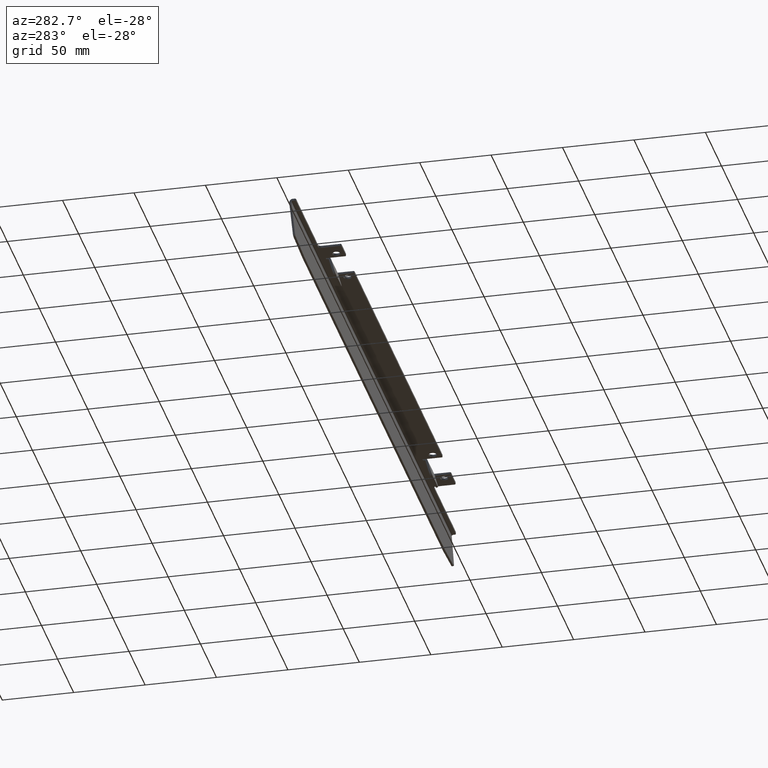
[diagram: clean part render]
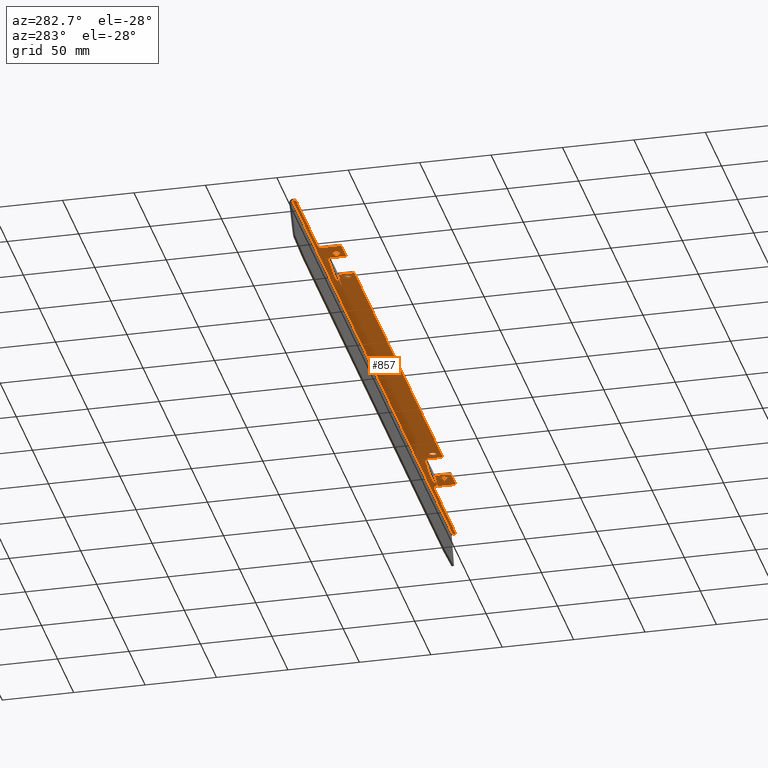
[diagram: same view with one face highlighted and labeled with its STEP entity id]
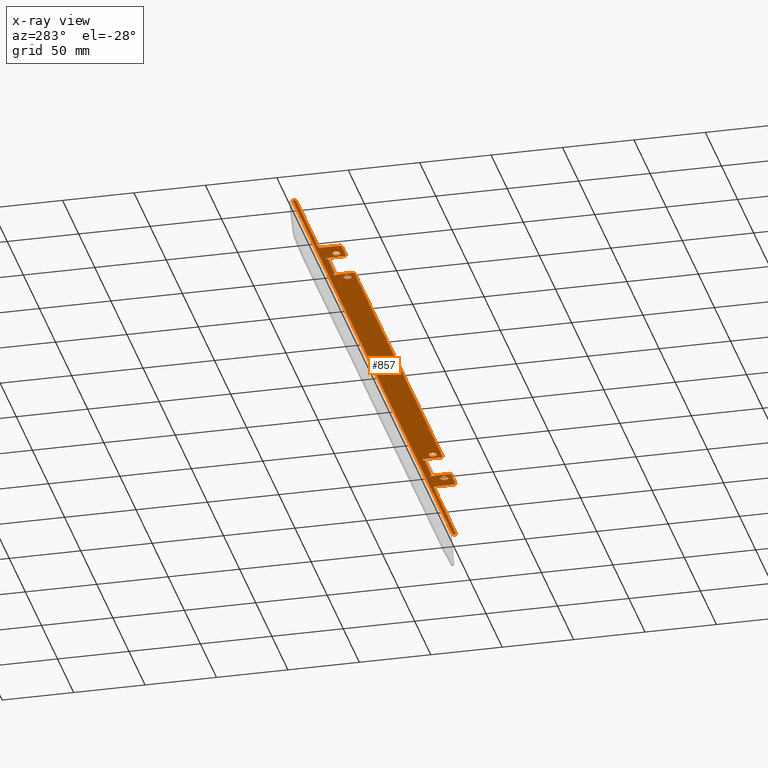
[diagram: x-ray of the same camera — body ghosted, the highlighted face saturated]
A machine part, auxiliary view. The second image highlights one B-rep face of the part: STEP entity #857.
The next image is the same camera in x-ray: the body ghosted, the highlighted face saturated — about 0% of this face is hidden behind the body in this view.
In plain terms, the highlighted planar face has unit normal (0, -0, 1).
Its self-contained STEP definition (entity closure, byte-faithful):
#1 = EDGE_CURVE ( 'NONE', #805, #1287, #2241, .T. ) ;
#18 = EDGE_CURVE ( 'NONE', #1100, #1870, #301, .T. ) ;
#23 = AXIS2_PLACEMENT_3D ( 'NONE', #202, #2084, #1515 ) ;
#25 = ORIENTED_EDGE ( 'NONE', *, *, #263, .F. ) ;
#26 = CARTESIAN_POINT ( 'NONE',  ( 163.5000000000000000, -5.328040652821459700, -1.500000000000000000 ) ) ;
#29 = VERTEX_POINT ( 'NONE', #349 ) ;
#30 = ORIENTED_EDGE ( 'NONE', *, *, #280, .T. ) ;
#32 = CIRCLE ( 'NONE', #221, 1.000000000000000900 ) ;
#39 = DIRECTION ( 'NONE',  ( 1.000000000000000000, -0.0000000000000000000, -0.0000000000000000000 ) ) ;
#44 = CARTESIAN_POINT ( 'NONE',  ( 170.2499999999999700, -0.5280406528214622900, -1.500000000000000000 ) ) ;
#49 = DIRECTION ( 'NONE',  ( -0.0000000000000000000, 0.0000000000000000000, -1.000000000000000000 ) ) ;
#51 = CARTESIAN_POINT ( 'NONE',  ( -178.0000000000000000, 7.471959347178456700, -1.500000000000000000 ) ) ;
#52 = CARTESIAN_POINT ( 'NONE',  ( -178.0000000000000000, 9.471959347178456700, -1.500000000000000000 ) ) ;
#54 = EDGE_CURVE ( 'NONE', #1840, #1373, #2180, .T. ) ;
#65 = VECTOR ( 'NONE', #1987, 1000.000000000000000 ) ;
#66 = CARTESIAN_POINT ( 'NONE',  ( -162.5000000000000000, -6.328040652821460600, -1.500000000000000000 ) ) ;
#70 = DIRECTION ( 'NONE',  ( 1.000000000000000000, 0.0000000000000000000, 0.0000000000000000000 ) ) ;
#77 = AXIS2_PLACEMENT_3D ( 'NONE', #2098, #251, #1159 ) ;
#99 = ORIENTED_EDGE ( 'NONE', *, *, #1634, .F. ) ;
#118 = EDGE_CURVE ( 'NONE', #811, #1091, #2253, .T. ) ;
#122 = ORIENTED_EDGE ( 'NONE', *, *, #1548, .F. ) ;
#126 = CARTESIAN_POINT ( 'NONE',  ( 180.0000000000000000, 9.471959347178456700, -1.500000000000000000 ) ) ;
#128 = VERTEX_POINT ( 'NONE', #927 ) ;
#129 = VECTOR ( 'NONE', #2172, 1000.000000000000000 ) ;
#132 = VECTOR ( 'NONE', #1773, 1000.000000000000000 ) ;
#151 = CARTESIAN_POINT ( 'NONE',  ( -139.0000000000000000, 6.871959347178530700, -1.500000000000000000 ) ) ;
#153 = LINE ( 'NONE', #1430, #1228 ) ;
#177 = VERTEX_POINT ( 'NONE', #2280 ) ;
#202 = CARTESIAN_POINT ( 'NONE',  ( -248.0999999999999900, 10.47195934717846700, -1.500000000000000000 ) ) ;
#205 = CARTESIAN_POINT ( 'NONE',  ( -162.5000000000000000, -6.328040652821460600, -1.500000000000000000 ) ) ;
#208 = ORIENTED_EDGE ( 'NONE', *, *, #1357, .T. ) ;
#219 = VERTEX_POINT ( 'NONE', #770 ) ;
#221 = AXIS2_PLACEMENT_3D ( 'NONE', #26, #851, #1188 ) ;
#227 = DIRECTION ( 'NONE',  ( 1.000000000000000000, 0.0000000000000000000, 0.0000000000000000000 ) ) ;
#243 = VERTEX_POINT ( 'NONE', #1904 ) ;
#247 = EDGE_CURVE ( 'NONE', #811, #1287, #1689, .T. ) ;
#251 = DIRECTION ( 'NONE',  ( 0.0000000000000000000, 0.0000000000000000000, 1.000000000000000000 ) ) ;
#253 = EDGE_CURVE ( 'NONE', #2114, #1383, #1892, .T. ) ;
#256 = AXIS2_PLACEMENT_3D ( 'NONE', #1105, #2355, #1861 ) ;
#263 = EDGE_CURVE ( 'NONE', #243, #295, #1632, .T. ) ;
#267 = EDGE_CURVE ( 'NONE', #683, #177, #761, .T. ) ;
#269 = VERTEX_POINT ( 'NONE', #392 ) ;
#278 = ORIENTED_EDGE ( 'NONE', *, *, #576, .F. ) ;
#280 = EDGE_CURVE ( 'NONE', #269, #1339, #1077, .T. ) ;
#288 = CARTESIAN_POINT ( 'NONE',  ( 161.0000000000000900, 7.871959347178525400, -1.500000000000000000 ) ) ;
#295 = VERTEX_POINT ( 'NONE', #1363 ) ;
#301 = CIRCLE ( 'NONE', #1698, 1.000000000000000900 ) ;
#302 = ORIENTED_EDGE ( 'NONE', *, *, #1083, .F. ) ;
#303 = LINE ( 'NONE', #2406, #65 ) ;
#304 = VECTOR ( 'NONE', #343, 1000.000000000000000 ) ;
#306 = DIRECTION ( 'NONE',  ( -0.0000000000000000000, 0.0000000000000000000, -1.000000000000000000 ) ) ;
#308 = CARTESIAN_POINT ( 'NONE',  ( -164.7499999999999700, -0.5280406528214622900, -1.500000000000000000 ) ) ;
#334 = VERTEX_POINT ( 'NONE', #44 ) ;
#342 = DIRECTION ( 'NONE',  ( 1.000000000000000000, 0.0000000000000000000, 0.0000000000000000000 ) ) ;
#343 = DIRECTION ( 'NONE',  ( 1.000000000000000000, -0.0000000000000000000, -0.0000000000000000000 ) ) ;
#349 = CARTESIAN_POINT ( 'NONE',  ( -137.4999999999999700, 7.871959347178525400, -1.500000000000000000 ) ) ;
#353 = ORIENTED_EDGE ( 'NONE', *, *, #118, .F. ) ;
#362 = LINE ( 'NONE', #735, #304 ) ;
#370 = CARTESIAN_POINT ( 'NONE',  ( -163.5000000000000000, -5.328040652821459700, -1.500000000000000000 ) ) ;
#375 = EDGE_CURVE ( 'NONE', #1100, #1373, #1544, .T. ) ;
#377 = VERTEX_POINT ( 'NONE', #1123 ) ;
#392 = CARTESIAN_POINT ( 'NONE',  ( -170.2499999999999700, -0.5280406528214619500, -1.500000000000000000 ) ) ;
#398 = AXIS2_PLACEMENT_3D ( 'NONE', #1563, #1934, #70 ) ;
#401 = ORIENTED_EDGE ( 'NONE', *, *, #793, .F. ) ;
#406 = EDGE_CURVE ( 'NONE', #1593, #2273, #1209, .T. ) ;
#419 = DIRECTION ( 'NONE',  ( 1.000000000000000000, 0.0000000000000000000, 0.0000000000000000000 ) ) ;
#423 = VERTEX_POINT ( 'NONE', #2431 ) ;
#435 = CARTESIAN_POINT ( 'NONE',  ( -178.0000000000000000, 9.471959347178456700, -1.500000000000000000 ) ) ;
#447 = ORIENTED_EDGE ( 'NONE', *, *, #375, .F. ) ;
#452 = VECTOR ( 'NONE', #2317, 1000.000000000000000 ) ;
#462 = VERTEX_POINT ( 'NONE', #1672 ) ;
#463 = LINE ( 'NONE', #1277, #2392 ) ;
#465 = DIRECTION ( 'NONE',  ( 1.110223024625163200E-013, -1.000000000000000000, -0.0000000000000000000 ) ) ;
#480 = CARTESIAN_POINT ( 'NONE',  ( -248.0999999999999900, 9.471959347178469100, -1.500000000000000000 ) ) ;
#489 = ORIENTED_EDGE ( 'NONE', *, *, #554, .F. ) ;
#492 = ORIENTED_EDGE ( 'NONE', *, *, #1084, .F. ) ;
#498 = AXIS2_PLACEMENT_3D ( 'NONE', #2045, #1846, #532 ) ;
#502 = CARTESIAN_POINT ( 'NONE',  ( -138.9999999999999100, 7.871959347178525400, -1.500000000000000000 ) ) ;
#510 = AXIS2_PLACEMENT_3D ( 'NONE', #1462, #1845, #567 ) ;
#515 = LINE ( 'NONE', #1614, #1564 ) ;
#532 = DIRECTION ( 'NONE',  ( 1.000000000000000000, 0.0000000000000000000, 0.0000000000000000000 ) ) ;
#534 = EDGE_CURVE ( 'NONE', #1792, #1225, #1746, .T. ) ;
#554 = EDGE_CURVE ( 'NONE', #669, #1225, #904, .T. ) ;
#555 = VECTOR ( 'NONE', #2074, 1000.000000000000000 ) ;
#567 = DIRECTION ( 'NONE',  ( 1.000000000000000000, 0.0000000000000000000, -0.0000000000000000000 ) ) ;
#568 = EDGE_CURVE ( 'NONE', #128, #2380, #32, .T. ) ;
#576 = EDGE_CURVE ( 'NONE', #1951, #2114, #2383, .T. ) ;
#589 = EDGE_CURVE ( 'NONE', #1560, #1012, #2153, .T. ) ;
#594 = CARTESIAN_POINT ( 'NONE',  ( 0.0000000000000000000, -6.328040652821457000, -1.500000000000000000 ) ) ;
#602 = ORIENTED_EDGE ( 'NONE', *, *, #1223, .F. ) ;
#603 = ORIENTED_EDGE ( 'NONE', *, *, #1074, .F. ) ;
#605 = CIRCLE ( 'NONE', #77, 2.750000000000002700 ) ;
#609 = CIRCLE ( 'NONE', #23, 1.000000000000000900 ) ;
#613 = CARTESIAN_POINT ( 'NONE',  ( 139.0000000000000000, 6.871959347178529900, -1.499999999999996200 ) ) ;
#619 = DIRECTION ( 'NONE',  ( 1.000000000000000000, 0.0000000000000000000, 0.0000000000000000000 ) ) ;
#623 = DIRECTION ( 'NONE',  ( 1.110223024625163200E-013, 1.000000000000000000, 0.0000000000000000000 ) ) ;
#624 = CARTESIAN_POINT ( 'NONE',  ( 137.4999999999999700, 7.871959347178525400, -1.500000000000000000 ) ) ;
#632 = ORIENTED_EDGE ( 'NONE', *, *, #253, .F. ) ;
#633 = FACE_BOUND ( 'NONE', #1391, .T. ) ;
#658 = ORIENTED_EDGE ( 'NONE', *, *, #589, .F. ) ;
#661 = VECTOR ( 'NONE', #623, 1000.000000000000000 ) ;
#669 = VERTEX_POINT ( 'NONE', #480 ) ;
#678 = EDGE_LOOP ( 'NONE', ( #2441, #2276 ) ) ;
#683 = VERTEX_POINT ( 'NONE', #1394 ) ;
#684 = CIRCLE ( 'NONE', #1314, 1.000000000000000900 ) ;
#685 = DIRECTION ( 'NONE',  ( -1.000000000000000000, 0.0000000000000000000, 0.0000000000000000000 ) ) ;
#699 = VERTEX_POINT ( 'NONE', #1602 ) ;
#708 = DIRECTION ( 'NONE',  ( -0.0000000000000000000, -1.000000000000000000, -0.0000000000000000000 ) ) ;
#734 = CARTESIAN_POINT ( 'NONE',  ( 178.0000000000000000, 9.471959347178456700, -1.500000000000000000 ) ) ;
#735 = CARTESIAN_POINT ( 'NONE',  ( 162.5000000000000000, 7.871959347178525400, -1.500000000000000000 ) ) ;
#742 = CIRCLE ( 'NONE', #398, 1.000000000000000900 ) ;
#743 = EDGE_CURVE ( 'NONE', #1339, #269, #1624, .T. ) ;
#745 = EDGE_CURVE ( 'NONE', #1012, #863, #303, .T. ) ;
#749 = PLANE ( 'NONE',  #510 ) ;
#761 = LINE ( 'NONE', #594, #849 ) ;
#770 = CARTESIAN_POINT ( 'NONE',  ( 162.5000000000000000, 7.871959347178525400, -1.500000000000000000 ) ) ;
#774 = EDGE_CURVE ( 'NONE', #219, #2380, #2357, .T. ) ;
#776 = VERTEX_POINT ( 'NONE', #2369 ) ;
#778 = DIRECTION ( 'NONE',  ( 0.0000000000000000000, -0.0000000000000000000, 1.000000000000000000 ) ) ;
#787 = CARTESIAN_POINT ( 'NONE',  ( 137.4999999999999700, -6.328040652821460600, -1.500000000000000000 ) ) ;
#790 = ORIENTED_EDGE ( 'NONE', *, *, #1313, .T. ) ;
#793 = EDGE_CURVE ( 'NONE', #377, #243, #515, .T. ) ;
#802 = CARTESIAN_POINT ( 'NONE',  ( -180.0000000000000000, 7.471959347178456700, -1.500000000000000000 ) ) ;
#805 = VERTEX_POINT ( 'NONE', #1061 ) ;
#809 = ORIENTED_EDGE ( 'NONE', *, *, #247, .T. ) ;
#811 = VERTEX_POINT ( 'NONE', #126 ) ;
#820 = VERTEX_POINT ( 'NONE', #502 ) ;
#827 = ORIENTED_EDGE ( 'NONE', *, *, #2034, .F. ) ;
#831 = CARTESIAN_POINT ( 'NONE',  ( 135.2499999999999700, -0.4280406528214620300, -1.500000000000000000 ) ) ;
#839 = FACE_BOUND ( 'NONE', #678, .T. ) ;
#849 = VECTOR ( 'NONE', #1132, 1000.000000000000000 ) ;
#851 = DIRECTION ( 'NONE',  ( -0.0000000000000000000, 0.0000000000000000000, -1.000000000000000000 ) ) ;
#857 = ADVANCED_FACE ( 'NONE', ( #633, #839, #1853, #2058, #2439 ), #749, .F. ) ;
#863 = VERTEX_POINT ( 'NONE', #1886 ) ;
#865 = CIRCLE ( 'NONE', #1240, 1.000000000000000900 ) ;
#870 = LINE ( 'NONE', #1874, #1944 ) ;
#888 = ORIENTED_EDGE ( 'NONE', *, *, #2305, .T. ) ;
#900 = ORIENTED_EDGE ( 'NONE', *, *, #2287, .T. ) ;
#904 = LINE ( 'NONE', #435, #452 ) ;
#909 = CARTESIAN_POINT ( 'NONE',  ( 167.4999999999999700, -0.5280406528214622900, -1.500000000000000000 ) ) ;
#912 = VECTOR ( 'NONE', #2016, 1000.000000000000000 ) ;
#918 = EDGE_CURVE ( 'NONE', #128, #699, #870, .T. ) ;
#927 = CARTESIAN_POINT ( 'NONE',  ( 163.5000000000000000, -6.328040652821459700, -1.500000000000000000 ) ) ;
#939 = DIRECTION ( 'NONE',  ( 0.0000000000000000000, 1.000000000000000000, 0.0000000000000000000 ) ) ;
#944 = CARTESIAN_POINT ( 'NONE',  ( -160.9999999999999700, 6.871959347178530700, -1.500000000000000000 ) ) ;
#965 = DIRECTION ( 'NONE',  ( 1.110223024625163200E-013, -1.000000000000000000, -0.0000000000000000000 ) ) ;
#974 = DIRECTION ( 'NONE',  ( 1.000000000000000000, 0.0000000000000000000, 0.0000000000000000000 ) ) ;
#1002 = CARTESIAN_POINT ( 'NONE',  ( -136.4999999999999700, -5.328040652821453400, -1.500000000000000000 ) ) ;
#1012 = VERTEX_POINT ( 'NONE', #1334 ) ;
#1019 = CARTESIAN_POINT ( 'NONE',  ( -177.0000000000000000, -6.328040652821452600, -1.500000000000000000 ) ) ;
#1020 = EDGE_LOOP ( 'NONE', ( #208, #1089 ) ) ;
#1029 = CARTESIAN_POINT ( 'NONE',  ( 248.0999999999999900, 10.47195934717846700, -1.500000000000000000 ) ) ;
#1030 = CARTESIAN_POINT ( 'NONE',  ( -249.0999999999999900, 11.57195934717847100, -1.500000000000000000 ) ) ;
#1033 = CARTESIAN_POINT ( 'NONE',  ( 138.9999999999999100, 7.871959347178525400, -1.500000000000000000 ) ) ;
#1044 = LINE ( 'NONE', #1883, #2093 ) ;
#1053 = CARTESIAN_POINT ( 'NONE',  ( 178.0000000000000000, 9.471959347178456700, -1.500000000000000000 ) ) ;
#1061 = CARTESIAN_POINT ( 'NONE',  ( 178.0000000000000000, -5.328040652821452600, -1.500000000000000000 ) ) ;
#1067 = EDGE_CURVE ( 'NONE', #1538, #334, #605, .T. ) ;
#1074 = EDGE_CURVE ( 'NONE', #1792, #1870, #2407, .T. ) ;
#1077 = CIRCLE ( 'NONE', #1603, 2.750000000000002700 ) ;
#1080 = DIRECTION ( 'NONE',  ( -0.0000000000000000000, 1.000000000000000000, -0.0000000000000000000 ) ) ;
#1083 = EDGE_CURVE ( 'NONE', #423, #820, #1204, .T. ) ;
#1084 = EDGE_CURVE ( 'NONE', #820, #29, #1739, .T. ) ;
#1089 = ORIENTED_EDGE ( 'NONE', *, *, #1067, .T. ) ;
#1091 = VERTEX_POINT ( 'NONE', #1375 ) ;
#1100 = VERTEX_POINT ( 'NONE', #1019 ) ;
#1104 = CARTESIAN_POINT ( 'NONE',  ( 164.7499999999999700, -0.5280406528214619500, -1.500000000000000000 ) ) ;
#1105 = CARTESIAN_POINT ( 'NONE',  ( -167.4999999999999700, -0.5280406528214622900, -1.500000000000000000 ) ) ;
#1116 = EDGE_LOOP ( 'NONE', ( #790, #1655 ) ) ;
#1120 = EDGE_CURVE ( 'NONE', #29, #1361, #153, .T. ) ;
#1123 = CARTESIAN_POINT ( 'NONE',  ( -162.5000000000000000, 7.871959347178525400, -1.500000000000000000 ) ) ;
#1132 = DIRECTION ( 'NONE',  ( 1.000000000000000000, 2.523234146875356000E-017, -0.0000000000000000000 ) ) ;
#1144 = ORIENTED_EDGE ( 'NONE', *, *, #1, .F. ) ;
#1155 = CARTESIAN_POINT ( 'NONE',  ( 177.0000000000000000, -5.328040652821452600, -1.500000000000000000 ) ) ;
#1157 = DIRECTION ( 'NONE',  ( 1.110223024625163200E-013, 1.000000000000000000, 0.0000000000000000000 ) ) ;
#1159 = DIRECTION ( 'NONE',  ( 1.000000000000000000, 0.0000000000000000000, 0.0000000000000000000 ) ) ;
#1161 = DIRECTION ( 'NONE',  ( 0.0000000000000000000, -0.0000000000000000000, 1.000000000000000000 ) ) ;
#1162 = DIRECTION ( 'NONE',  ( -1.000000000000000000, 0.0000000000000000000, 0.0000000000000000000 ) ) ;
#1163 = CIRCLE ( 'NONE', #2104, 1.000000000000000900 ) ;
#1164 = CARTESIAN_POINT ( 'NONE',  ( 132.4999999999999700, -0.4280406528214620300, -1.500000000000000000 ) ) ;
#1185 = DIRECTION ( 'NONE',  ( 0.0000000000000000000, -1.000000000000000000, 0.0000000000000000000 ) ) ;
#1188 = DIRECTION ( 'NONE',  ( 1.000000000000000000, 0.0000000000000000000, 0.0000000000000000000 ) ) ;
#1194 = CARTESIAN_POINT ( 'NONE',  ( 178.0000000000000000, 7.471959347178456700, -1.500000000000000000 ) ) ;
#1200 = CARTESIAN_POINT ( 'NONE',  ( -135.2499999999999700, -0.4280406528214617000, -1.500000000000000000 ) ) ;
#1204 = LINE ( 'NONE', #1545, #661 ) ;
#1209 = LINE ( 'NONE', #787, #2089 ) ;
#1220 = DIRECTION ( 'NONE',  ( 0.0000000000000000000, 0.0000000000000000000, 1.000000000000000000 ) ) ;
#1223 = EDGE_CURVE ( 'NONE', #1840, #377, #2030, .T. ) ;
#1225 = VERTEX_POINT ( 'NONE', #1600 ) ;
#1228 = VECTOR ( 'NONE', #708, 1000.000000000000000 ) ;
#1240 = AXIS2_PLACEMENT_3D ( 'NONE', #1029, #1392, #2149 ) ;
#1243 = CARTESIAN_POINT ( 'NONE',  ( 160.9999999999999700, 6.871959347178529900, -1.500000000000002700 ) ) ;
#1264 = CARTESIAN_POINT ( 'NONE',  ( -177.0000000000000000, -5.328040652821452600, -1.500000000000000000 ) ) ;
#1265 = VERTEX_POINT ( 'NONE', #1200 ) ;
#1267 = VECTOR ( 'NONE', #465, 1000.000000000000000 ) ;
#1271 = ORIENTED_EDGE ( 'NONE', *, *, #406, .F. ) ;
#1274 = DIRECTION ( 'NONE',  ( 1.000000000000000000, 1.707885278739472600E-016, 0.0000000000000000000 ) ) ;
#1277 = CARTESIAN_POINT ( 'NONE',  ( 137.4999999999999700, 7.871959347178525400, -1.500000000000000000 ) ) ;
#1284 = DIRECTION ( 'NONE',  ( 1.000000000000000000, 0.0000000000000000000, 0.0000000000000000000 ) ) ;
#1286 = CARTESIAN_POINT ( 'NONE',  ( 249.0999999999999900, 11.57195934717847200, -1.499999999999993800 ) ) ;
#1287 = VERTEX_POINT ( 'NONE', #1194 ) ;
#1288 = ORIENTED_EDGE ( 'NONE', *, *, #2164, .F. ) ;
#1290 = VECTOR ( 'NONE', #1367, 1000.000000000000000 ) ;
#1296 = EDGE_CURVE ( 'NONE', #462, #1091, #865, .T. ) ;
#1313 = EDGE_CURVE ( 'NONE', #776, #1265, #1977, .T. ) ;
#1314 = AXIS2_PLACEMENT_3D ( 'NONE', #1002, #49, #619 ) ;
#1334 = CARTESIAN_POINT ( 'NONE',  ( -249.0999999999999900, 11.57195934717847200, -1.499999999999993800 ) ) ;
#1339 = VERTEX_POINT ( 'NONE', #308 ) ;
#1343 = ORIENTED_EDGE ( 'NONE', *, *, #1296, .T. ) ;
#1357 = EDGE_CURVE ( 'NONE', #334, #1538, #1652, .T. ) ;
#1361 = VERTEX_POINT ( 'NONE', #2012 ) ;
#1363 = CARTESIAN_POINT ( 'NONE',  ( -160.9999999999999700, 6.871959347178529900, -1.499999999999996200 ) ) ;
#1367 = DIRECTION ( 'NONE',  ( 0.0000000000000000000, 1.000000000000000000, 0.0000000000000000000 ) ) ;
#1368 = CARTESIAN_POINT ( 'NONE',  ( 139.0000000000000000, 6.871959347178530700, -1.500000000000000000 ) ) ;
#1372 = DIRECTION ( 'NONE',  ( 0.0000000000000000000, 0.0000000000000000000, 1.000000000000000000 ) ) ;
#1373 = VERTEX_POINT ( 'NONE', #1608 ) ;
#1375 = CARTESIAN_POINT ( 'NONE',  ( 248.0999999999999900, 9.471959347178469100, -1.500000000000000000 ) ) ;
#1383 = VERTEX_POINT ( 'NONE', #1243 ) ;
#1385 = ORIENTED_EDGE ( 'NONE', *, *, #774, .F. ) ;
#1391 = EDGE_LOOP ( 'NONE', ( #2418, #30 ) ) ;
#1392 = DIRECTION ( 'NONE',  ( -0.0000000000000000000, 0.0000000000000000000, -1.000000000000000000 ) ) ;
#1394 = CARTESIAN_POINT ( 'NONE',  ( -136.4999999999999700, -6.328040652821460600, -1.500000000000000000 ) ) ;
#1405 = VECTOR ( 'NONE', #39, 1000.000000000000000 ) ;
#1412 = CIRCLE ( 'NONE', #1666, 2.750000000000002700 ) ;
#1422 = EDGE_CURVE ( 'NONE', #1265, #776, #1412, .T. ) ;
#1430 = CARTESIAN_POINT ( 'NONE',  ( -137.4999999999999700, -6.328040652821460600, -1.500000000000000000 ) ) ;
#1448 = DIRECTION ( 'NONE',  ( -1.000000000000000000, 0.0000000000000000000, 0.0000000000000000000 ) ) ;
#1451 = EDGE_CURVE ( 'NONE', #2072, #1784, #1683, .T. ) ;
#1462 = CARTESIAN_POINT ( 'NONE',  ( 0.0000000000000000000, 0.0000000000000000000, -1.500000000000000000 ) ) ;
#1481 = CARTESIAN_POINT ( 'NONE',  ( 162.5000000000000000, -6.328040652821460600, -1.500000000000000000 ) ) ;
#1515 = DIRECTION ( 'NONE',  ( 1.000000000000000000, 0.0000000000000000000, 0.0000000000000000000 ) ) ;
#1538 = VERTEX_POINT ( 'NONE', #1104 ) ;
#1539 = AXIS2_PLACEMENT_3D ( 'NONE', #370, #2216, #342 ) ;
#1542 = DIRECTION ( 'NONE',  ( 1.000000000000000000, 0.0000000000000000000, 0.0000000000000000000 ) ) ;
#1544 = LINE ( 'NONE', #205, #555 ) ;
#1545 = CARTESIAN_POINT ( 'NONE',  ( -139.0000000000000000, 6.871959347178530700, -1.500000000000000000 ) ) ;
#1548 = EDGE_CURVE ( 'NONE', #1887, #219, #362, .T. ) ;
#1554 = AXIS2_PLACEMENT_3D ( 'NONE', #1713, #778, #1542 ) ;
#1560 = VERTEX_POINT ( 'NONE', #1286 ) ;
#1563 = CARTESIAN_POINT ( 'NONE',  ( 136.4999999999999700, -5.328040652821460600, -1.500000000000000000 ) ) ;
#1564 = VECTOR ( 'NONE', #2419, 1000.000000000000000 ) ;
#1589 = ORIENTED_EDGE ( 'NONE', *, *, #534, .T. ) ;
#1593 = VERTEX_POINT ( 'NONE', #1715 ) ;
#1600 = CARTESIAN_POINT ( 'NONE',  ( -180.0000000000000000, 9.471959347178456700, -1.500000000000000000 ) ) ;
#1602 = CARTESIAN_POINT ( 'NONE',  ( 177.0000000000000000, -6.328040652821452600, -1.500000000000000000 ) ) ;
#1603 = AXIS2_PLACEMENT_3D ( 'NONE', #2101, #1929, #1162 ) ;
#1608 = CARTESIAN_POINT ( 'NONE',  ( -163.5000000000000000, -6.328040652821459700, -1.500000000000000000 ) ) ;
#1614 = CARTESIAN_POINT ( 'NONE',  ( -162.5000000000000000, 7.871959347178525400, -1.500000000000000000 ) ) ;
#1624 = CIRCLE ( 'NONE', #256, 2.750000000000002700 ) ;
#1627 = ORIENTED_EDGE ( 'NONE', *, *, #568, .T. ) ;
#1632 = LINE ( 'NONE', #944, #2336 ) ;
#1634 = EDGE_CURVE ( 'NONE', #462, #1560, #1044, .T. ) ;
#1652 = CIRCLE ( 'NONE', #2014, 2.750000000000002700 ) ;
#1655 = ORIENTED_EDGE ( 'NONE', *, *, #1422, .T. ) ;
#1666 = AXIS2_PLACEMENT_3D ( 'NONE', #1807, #2019, #685 ) ;
#1672 = CARTESIAN_POINT ( 'NONE',  ( 249.0999999999999900, 10.47195934717846700, -1.500000000000000000 ) ) ;
#1675 = DIRECTION ( 'NONE',  ( -0.0000000000000000000, 0.0000000000000000000, -1.000000000000000000 ) ) ;
#1677 = EDGE_CURVE ( 'NONE', #669, #863, #609, .T. ) ;
#1683 = CIRCLE ( 'NONE', #498, 2.750000000000002700 ) ;
#1689 = CIRCLE ( 'NONE', #1554, 2.000000000000001800 ) ;
#1698 = AXIS2_PLACEMENT_3D ( 'NONE', #1264, #306, #1805 ) ;
#1713 = CARTESIAN_POINT ( 'NONE',  ( 180.0000000000000000, 7.471959347178456700, -1.500000000000000000 ) ) ;
#1715 = CARTESIAN_POINT ( 'NONE',  ( 137.4999999999999700, -5.328040652821460600, -1.500000000000000000 ) ) ;
#1734 = ORIENTED_EDGE ( 'NONE', *, *, #18, .T. ) ;
#1738 = CARTESIAN_POINT ( 'NONE',  ( 160.9999999999999700, 6.871959347178530700, -1.500000000000000000 ) ) ;
#1739 = LINE ( 'NONE', #1941, #1405 ) ;
#1741 = VECTOR ( 'NONE', #1080, 1000.000000000000000 ) ;
#1746 = CIRCLE ( 'NONE', #1899, 2.000000000000001800 ) ;
#1757 = DIRECTION ( 'NONE',  ( 1.000000000000000000, 0.0000000000000000000, 0.0000000000000000000 ) ) ;
#1760 = EDGE_CURVE ( 'NONE', #1784, #2072, #1919, .T. ) ;
#1770 = ORIENTED_EDGE ( 'NONE', *, *, #54, .T. ) ;
#1773 = DIRECTION ( 'NONE',  ( -1.000000000000000000, -0.0000000000000000000, -0.0000000000000000000 ) ) ;
#1784 = VERTEX_POINT ( 'NONE', #831 ) ;
#1790 = CARTESIAN_POINT ( 'NONE',  ( -178.0000000000000000, -5.328040652821452600, -1.500000000000000000 ) ) ;
#1792 = VERTEX_POINT ( 'NONE', #51 ) ;
#1797 = ORIENTED_EDGE ( 'NONE', *, *, #918, .F. ) ;
#1805 = DIRECTION ( 'NONE',  ( 1.000000000000000000, 0.0000000000000000000, 0.0000000000000000000 ) ) ;
#1806 = EDGE_CURVE ( 'NONE', #1383, #1887, #2033, .T. ) ;
#1807 = CARTESIAN_POINT ( 'NONE',  ( -132.4999999999999700, -0.4280406528214620300, -1.500000000000000000 ) ) ;
#1813 = CARTESIAN_POINT ( 'NONE',  ( -132.4999999999999700, -0.4280406528214620300, -1.500000000000000000 ) ) ;
#1840 = VERTEX_POINT ( 'NONE', #1973 ) ;
#1845 = DIRECTION ( 'NONE',  ( 0.0000000000000000000, -0.0000000000000000000, 1.000000000000000000 ) ) ;
#1846 = DIRECTION ( 'NONE',  ( 0.0000000000000000000, 0.0000000000000000000, 1.000000000000000000 ) ) ;
#1853 = FACE_BOUND ( 'NONE', #1116, .T. ) ;
#1859 = VECTOR ( 'NONE', #1157, 1000.000000000000000 ) ;
#1861 = DIRECTION ( 'NONE',  ( -1.000000000000000000, 0.0000000000000000000, 0.0000000000000000000 ) ) ;
#1870 = VERTEX_POINT ( 'NONE', #1790 ) ;
#1874 = CARTESIAN_POINT ( 'NONE',  ( 162.5000000000000000, -6.328040652821460600, -1.500000000000000000 ) ) ;
#1883 = CARTESIAN_POINT ( 'NONE',  ( 249.0999999999999900, 11.57195934717847100, -1.500000000000000000 ) ) ;
#1886 = CARTESIAN_POINT ( 'NONE',  ( -249.0999999999999900, 10.47195934717846700, -1.500000000000000000 ) ) ;
#1887 = VERTEX_POINT ( 'NONE', #288 ) ;
#1892 = LINE ( 'NONE', #2095, #1983 ) ;
#1899 = AXIS2_PLACEMENT_3D ( 'NONE', #802, #1161, #419 ) ;
#1900 = DIRECTION ( 'NONE',  ( -0.0000000000000000000, 1.000000000000000000, -0.0000000000000000000 ) ) ;
#1904 = CARTESIAN_POINT ( 'NONE',  ( -161.0000000000000900, 7.871959347178525400, -1.500000000000000000 ) ) ;
#1910 = ORIENTED_EDGE ( 'NONE', *, *, #1677, .T. ) ;
#1919 = CIRCLE ( 'NONE', #2041, 2.750000000000002700 ) ;
#1921 = ORIENTED_EDGE ( 'NONE', *, *, #745, .F. ) ;
#1929 = DIRECTION ( 'NONE',  ( 0.0000000000000000000, 0.0000000000000000000, 1.000000000000000000 ) ) ;
#1934 = DIRECTION ( 'NONE',  ( -0.0000000000000000000, 0.0000000000000000000, -1.000000000000000000 ) ) ;
#1941 = CARTESIAN_POINT ( 'NONE',  ( -137.4999999999999700, 7.871959347178525400, -1.500000000000000000 ) ) ;
#1944 = VECTOR ( 'NONE', #2087, 1000.000000000000000 ) ;
#1951 = VERTEX_POINT ( 'NONE', #1033 ) ;
#1964 = AXIS2_PLACEMENT_3D ( 'NONE', #1813, #1991, #1448 ) ;
#1972 = VECTOR ( 'NONE', #1185, 1000.000000000000000 ) ;
#1973 = CARTESIAN_POINT ( 'NONE',  ( -162.5000000000000000, -5.328040652821459700, -1.500000000000000000 ) ) ;
#1977 = CIRCLE ( 'NONE', #1964, 2.750000000000002700 ) ;
#1983 = VECTOR ( 'NONE', #227, 1000.000000000000000 ) ;
#1987 = DIRECTION ( 'NONE',  ( 0.0000000000000000000, -1.000000000000000000, 0.0000000000000000000 ) ) ;
#1991 = DIRECTION ( 'NONE',  ( 0.0000000000000000000, 0.0000000000000000000, 1.000000000000000000 ) ) ;
#1995 = ORIENTED_EDGE ( 'NONE', *, *, #2199, .T. ) ;
#2009 = ORIENTED_EDGE ( 'NONE', *, *, #1120, .F. ) ;
#2012 = CARTESIAN_POINT ( 'NONE',  ( -137.4999999999999700, -5.328040652821453400, -1.500000000000000000 ) ) ;
#2014 = AXIS2_PLACEMENT_3D ( 'NONE', #909, #1220, #2171 ) ;
#2016 = DIRECTION ( 'NONE',  ( 1.000000000000000000, -0.0000000000000000000, -0.0000000000000000000 ) ) ;
#2019 = DIRECTION ( 'NONE',  ( 0.0000000000000000000, 0.0000000000000000000, 1.000000000000000000 ) ) ;
#2021 = CARTESIAN_POINT ( 'NONE',  ( 129.7499999999999700, -0.4280406528214617000, -1.500000000000000000 ) ) ;
#2030 = LINE ( 'NONE', #66, #1290 ) ;
#2033 = LINE ( 'NONE', #1738, #1859 ) ;
#2034 = EDGE_CURVE ( 'NONE', #295, #423, #2071, .T. ) ;
#2041 = AXIS2_PLACEMENT_3D ( 'NONE', #1164, #1372, #1757 ) ;
#2045 = CARTESIAN_POINT ( 'NONE',  ( 132.4999999999999700, -0.4280406528214620300, -1.500000000000000000 ) ) ;
#2049 = EDGE_LOOP ( 'NONE', ( #489, #1910, #1921, #658, #99, #1343, #353, #809, #1144, #1995, #1797, #1627, #1385, #122, #2113, #632, #278, #1288, #1271, #888, #2115, #900, #2009, #492, #302, #827, #25, #401, #602, #1770, #447, #1734, #603, #1589 ) ) ;
#2058 = FACE_BOUND ( 'NONE', #1020, .T. ) ;
#2071 = LINE ( 'NONE', #151, #912 ) ;
#2072 = VERTEX_POINT ( 'NONE', #2021 ) ;
#2074 = DIRECTION ( 'NONE',  ( 1.000000000000000000, -5.595882180570350100E-016, -0.0000000000000000000 ) ) ;
#2084 = DIRECTION ( 'NONE',  ( -0.0000000000000000000, 0.0000000000000000000, -1.000000000000000000 ) ) ;
#2087 = DIRECTION ( 'NONE',  ( 1.000000000000000000, 5.595882180570350100E-016, 0.0000000000000000000 ) ) ;
#2089 = VECTOR ( 'NONE', #939, 1000.000000000000000 ) ;
#2093 = VECTOR ( 'NONE', #1900, 1000.000000000000000 ) ;
#2095 = CARTESIAN_POINT ( 'NONE',  ( 139.0000000000000000, 6.871959347178530700, -1.500000000000000000 ) ) ;
#2098 = CARTESIAN_POINT ( 'NONE',  ( 167.4999999999999700, -0.5280406528214622900, -1.500000000000000000 ) ) ;
#2101 = CARTESIAN_POINT ( 'NONE',  ( -167.4999999999999700, -0.5280406528214622900, -1.500000000000000000 ) ) ;
#2104 = AXIS2_PLACEMENT_3D ( 'NONE', #1155, #1675, #1284 ) ;
#2113 = ORIENTED_EDGE ( 'NONE', *, *, #1806, .F. ) ;
#2114 = VERTEX_POINT ( 'NONE', #613 ) ;
#2115 = ORIENTED_EDGE ( 'NONE', *, *, #267, .F. ) ;
#2149 = DIRECTION ( 'NONE',  ( 1.000000000000000000, 0.0000000000000000000, 0.0000000000000000000 ) ) ;
#2153 = LINE ( 'NONE', #1030, #132 ) ;
#2164 = EDGE_CURVE ( 'NONE', #2273, #1951, #463, .T. ) ;
#2169 = CARTESIAN_POINT ( 'NONE',  ( 162.5000000000000000, -5.328040652821459700, -1.500000000000000000 ) ) ;
#2171 = DIRECTION ( 'NONE',  ( 1.000000000000000000, 0.0000000000000000000, 0.0000000000000000000 ) ) ;
#2172 = DIRECTION ( 'NONE',  ( -0.0000000000000000000, -1.000000000000000000, -0.0000000000000000000 ) ) ;
#2180 = CIRCLE ( 'NONE', #1539, 1.000000000000000900 ) ;
#2199 = EDGE_CURVE ( 'NONE', #805, #699, #1163, .T. ) ;
#2216 = DIRECTION ( 'NONE',  ( -0.0000000000000000000, 0.0000000000000000000, -1.000000000000000000 ) ) ;
#2241 = LINE ( 'NONE', #1053, #1741 ) ;
#2253 = LINE ( 'NONE', #734, #2421 ) ;
#2273 = VERTEX_POINT ( 'NONE', #624 ) ;
#2276 = ORIENTED_EDGE ( 'NONE', *, *, #1451, .T. ) ;
#2280 = CARTESIAN_POINT ( 'NONE',  ( 136.4999999999999700, -6.328040652821453400, -1.500000000000000000 ) ) ;
#2287 = EDGE_CURVE ( 'NONE', #683, #1361, #684, .T. ) ;
#2305 = EDGE_CURVE ( 'NONE', #1593, #177, #742, .T. ) ;
#2317 = DIRECTION ( 'NONE',  ( 1.000000000000000000, -1.707885278739472600E-016, -0.0000000000000000000 ) ) ;
#2336 = VECTOR ( 'NONE', #965, 1000.000000000000000 ) ;
#2355 = DIRECTION ( 'NONE',  ( 0.0000000000000000000, 0.0000000000000000000, 1.000000000000000000 ) ) ;
#2357 = LINE ( 'NONE', #1481, #129 ) ;
#2369 = CARTESIAN_POINT ( 'NONE',  ( -129.7499999999999700, -0.4280406528214620300, -1.500000000000000000 ) ) ;
#2380 = VERTEX_POINT ( 'NONE', #2169 ) ;
#2383 = LINE ( 'NONE', #1368, #1267 ) ;
#2392 = VECTOR ( 'NONE', #974, 1000.000000000000000 ) ;
#2406 = CARTESIAN_POINT ( 'NONE',  ( -249.0999999999999900, 11.57195934717847100, -1.500000000000000000 ) ) ;
#2407 = LINE ( 'NONE', #52, #1972 ) ;
#2418 = ORIENTED_EDGE ( 'NONE', *, *, #743, .T. ) ;
#2419 = DIRECTION ( 'NONE',  ( 1.000000000000000000, 0.0000000000000000000, 0.0000000000000000000 ) ) ;
#2421 = VECTOR ( 'NONE', #1274, 1000.000000000000000 ) ;
#2431 = CARTESIAN_POINT ( 'NONE',  ( -139.0000000000000000, 6.871959347178529900, -1.500000000000002700 ) ) ;
#2439 = FACE_OUTER_BOUND ( 'NONE', #2049, .T. ) ;
#2441 = ORIENTED_EDGE ( 'NONE', *, *, #1760, .T. ) ;